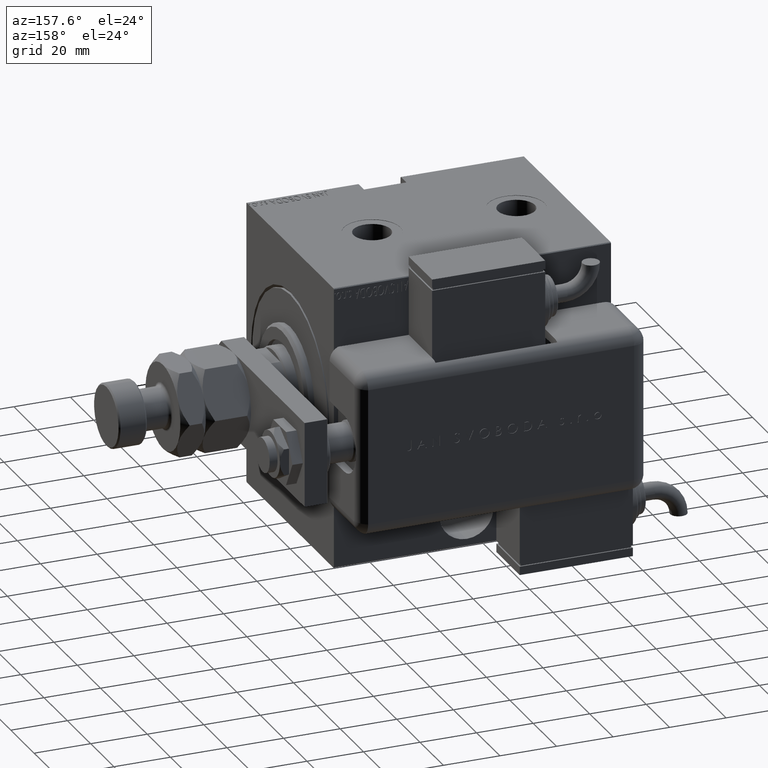
[diagram: clean part render]
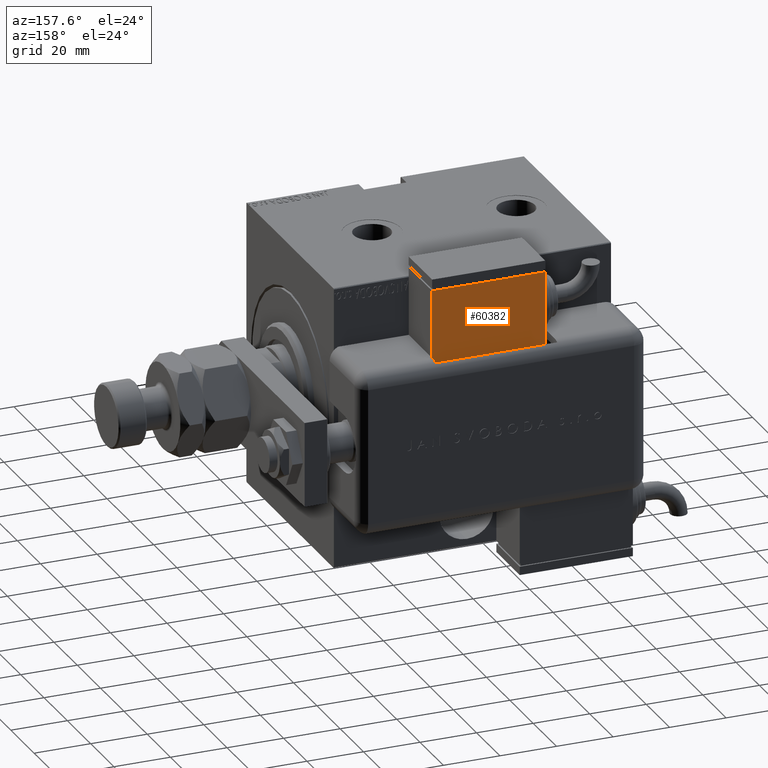
[diagram: same view with one face highlighted and labeled with its STEP entity id]
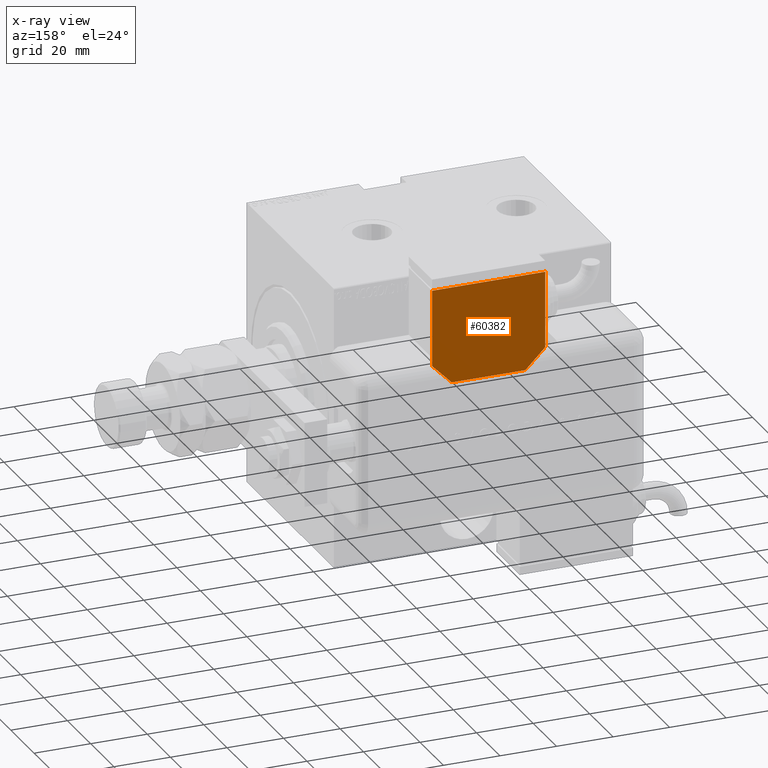
[diagram: x-ray of the same camera — body ghosted, the highlighted face saturated]
A machine part, auxiliary view. The second image highlights one B-rep face of the part: STEP entity #60382.
The next image is the same camera in x-ray: the body ghosted, the highlighted face saturated — about 0% of this face is hidden behind the body in this view.
In plain terms, the highlighted planar face has unit normal (0, 1, 0).
Its self-contained STEP definition (entity closure, byte-faithful):
#773 = ORIENTED_EDGE ( 'NONE', *, *, #49856, .T. ) ;
#1127 = LINE ( 'NONE', #20101, #53253 ) ;
#1240 = CARTESIAN_POINT ( 'NONE',  ( -19.99999999999993960, 13.49999999999986500, 10.00000000000000000 ) ) ;
#3159 = ORIENTED_EDGE ( 'NONE', *, *, #8004, .T. ) ;
#4603 = DIRECTION ( 'NONE',  ( -0.7071067811865356934, -0.7071067811865593411, -0.000000000000000000 ) ) ;
#4675 = CARTESIAN_POINT ( 'NONE',  ( 20.00000000000005684, 13.50000000000003730, 10.00000000000000000 ) ) ;
#4910 = LINE ( 'NONE', #28250, #10206 ) ;
#5398 = VECTOR ( 'NONE', #49937, 1000.000000000000000 ) ;
#5799 = CARTESIAN_POINT ( 'NONE',  ( 20.00000000000005329, -13.49999999999996092, 10.00000000000000000 ) ) ;
#7187 = EDGE_CURVE ( 'NONE', #26739, #49772, #16639, .T. ) ;
#8004 = EDGE_CURVE ( 'NONE', #61092, #27820, #1127, .T. ) ;
#10206 = VECTOR ( 'NONE', #4603, 1000.000000000000000 ) ;
#10893 = AXIS2_PLACEMENT_3D ( 'NONE', #58100, #47817, #33802 ) ;
#12168 = DIRECTION ( 'NONE',  ( -0.7071067811865479058, 0.7071067811865470176, -0.000000000000000000 ) ) ;
#12980 = ORIENTED_EDGE ( 'NONE', *, *, #45882, .T. ) ;
#14721 = VERTEX_POINT ( 'NONE', #4675 ) ;
#15333 = VERTEX_POINT ( 'NONE', #25736 ) ;
#16033 = DIRECTION ( 'NONE',  ( -1.284980352575421081E-16, -1.000000000000000000, -0.000000000000000000 ) ) ;
#16639 = LINE ( 'NONE', #60184, #5398 ) ;
#19031 = CARTESIAN_POINT ( 'NONE',  ( -12.99999999999994138, 20.50000000000009592, 10.00000000000000000 ) ) ;
#19755 = ORIENTED_EDGE ( 'NONE', *, *, #50722, .T. ) ;
#20101 = CARTESIAN_POINT ( 'NONE',  ( -19.99999999999994316, -13.49999999999996092, 10.00000000000000000 ) ) ;
#21654 = EDGE_CURVE ( 'NONE', #39276, #61092, #4910, .T. ) ;
#22480 = DIRECTION ( 'NONE',  ( -1.284980352575421081E-16, -1.000000000000000000, -0.000000000000000000 ) ) ;
#25736 = CARTESIAN_POINT ( 'NONE',  ( 12.99999999999999112, 20.50000000000009592, 10.00000000000000000 ) ) ;
#26237 = CARTESIAN_POINT ( 'NONE',  ( -19.99999999999994316, -13.49999999999996092, 10.00000000000000000 ) ) ;
#26739 = VERTEX_POINT ( 'NONE', #42096 ) ;
#27820 = VERTEX_POINT ( 'NONE', #48683 ) ;
#28250 = CARTESIAN_POINT ( 'NONE',  ( -19.99999999999993960, 13.49999999999986500, 10.00000000000000000 ) ) ;
#29380 = VECTOR ( 'NONE', #22480, 1000.000000000000000 ) ;
#29827 = ORIENTED_EDGE ( 'NONE', *, *, #21654, .T. ) ;
#31280 = CARTESIAN_POINT ( 'NONE',  ( -10.00000000000004086, 20.50000000000009592, 10.00000000000000000 ) ) ;
#31958 = CARTESIAN_POINT ( 'NONE',  ( 20.00000000000005329, -13.49999999999996092, 10.00000000000000000 ) ) ;
#33802 = DIRECTION ( 'NONE',  ( 1.000000000000000000, 0.000000000000000000, -0.000000000000000000 ) ) ;
#35268 = ORIENTED_EDGE ( 'NONE', *, *, #7187, .T. ) ;
#35809 = LINE ( 'NONE', #41403, #45575 ) ;
#37415 = VECTOR ( 'NONE', #42822, 1000.000000000000000 ) ;
#38165 = PLANE ( 'NONE',  #10893 ) ;
#39088 = LINE ( 'NONE', #5799, #37415 ) ;
#39276 = VERTEX_POINT ( 'NONE', #19031 ) ;
#41403 = CARTESIAN_POINT ( 'NONE',  ( 9.999999999999984013, 23.50000000000009592, 10.00000000000000000 ) ) ;
#42096 = CARTESIAN_POINT ( 'NONE',  ( -19.99999999999994316, -13.49999999999996092, 10.00000000000000000 ) ) ;
#42822 = DIRECTION ( 'NONE',  ( 1.284980352575412699E-16, 1.000000000000000000, 0.000000000000000000 ) ) ;
#44888 = LINE ( 'NONE', #26237, #29380 ) ;
#45575 = VECTOR ( 'NONE', #12168, 1000.000000000000114 ) ;
#45882 = EDGE_CURVE ( 'NONE', #27820, #26739, #44888, .T. ) ;
#46567 = ORIENTED_EDGE ( 'NONE', *, *, #55031, .T. ) ;
#47817 = DIRECTION ( 'NONE',  ( 0.000000000000000000, 0.000000000000000000, 1.000000000000000000 ) ) ;
#48683 = CARTESIAN_POINT ( 'NONE',  ( -19.99999999999993960, 2.569960705150834076E-15, 10.00000000000000000 ) ) ;
#49772 = VERTEX_POINT ( 'NONE', #31958 ) ;
#49856 = EDGE_CURVE ( 'NONE', #49772, #14721, #39088, .T. ) ;
#49937 = DIRECTION ( 'NONE',  ( 1.000000000000000000, 0.000000000000000000, 0.000000000000000000 ) ) ;
#50582 = DIRECTION ( 'NONE',  ( -1.000000000000000000, 0.000000000000000000, 0.000000000000000000 ) ) ;
#50716 = EDGE_LOOP ( 'NONE', ( #46567, #19755, #29827, #3159, #12980, #35268, #773 ) ) ;
#50722 = EDGE_CURVE ( 'NONE', #15333, #39276, #54941, .T. ) ;
#52202 = FACE_OUTER_BOUND ( 'NONE', #50716, .T. ) ;
#53253 = VECTOR ( 'NONE', #16033, 1000.000000000000000 ) ;
#54941 = LINE ( 'NONE', #31280, #61310 ) ;
#55031 = EDGE_CURVE ( 'NONE', #14721, #15333, #35809, .T. ) ;
#58100 = CARTESIAN_POINT ( 'NONE',  ( 0.000000000000000000, 0.000000000000000000, 10.00000000000000000 ) ) ;
#60184 = CARTESIAN_POINT ( 'NONE',  ( -19.99999999999994316, -13.49999999999996092, 10.00000000000000000 ) ) ;
#60382 = ADVANCED_FACE ( 'NONE', ( #52202 ), #38165, .T. ) ;
#61092 = VERTEX_POINT ( 'NONE', #1240 ) ;
#61310 = VECTOR ( 'NONE', #50582, 1000.000000000000000 ) ;